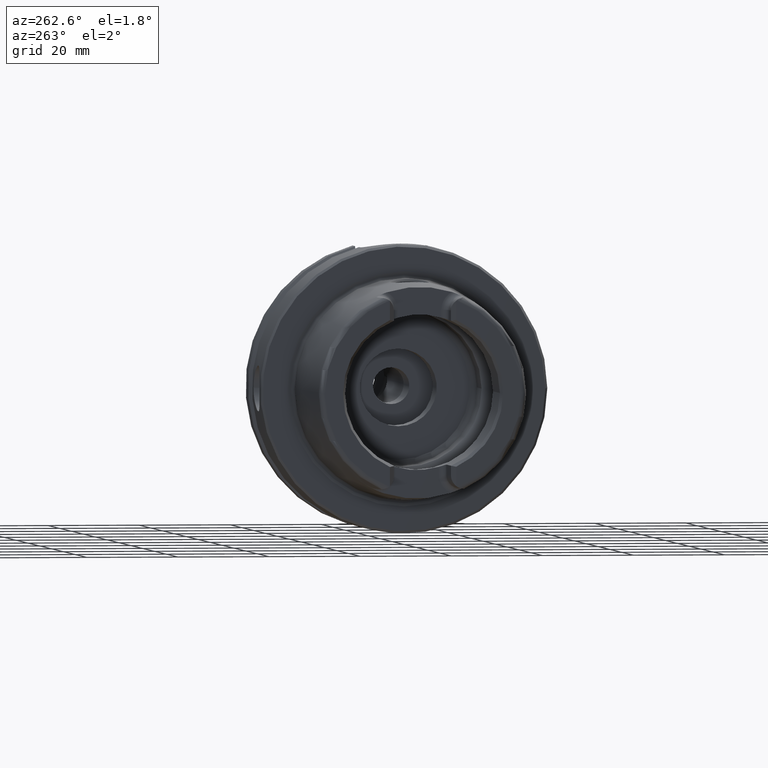
[diagram: clean part render]
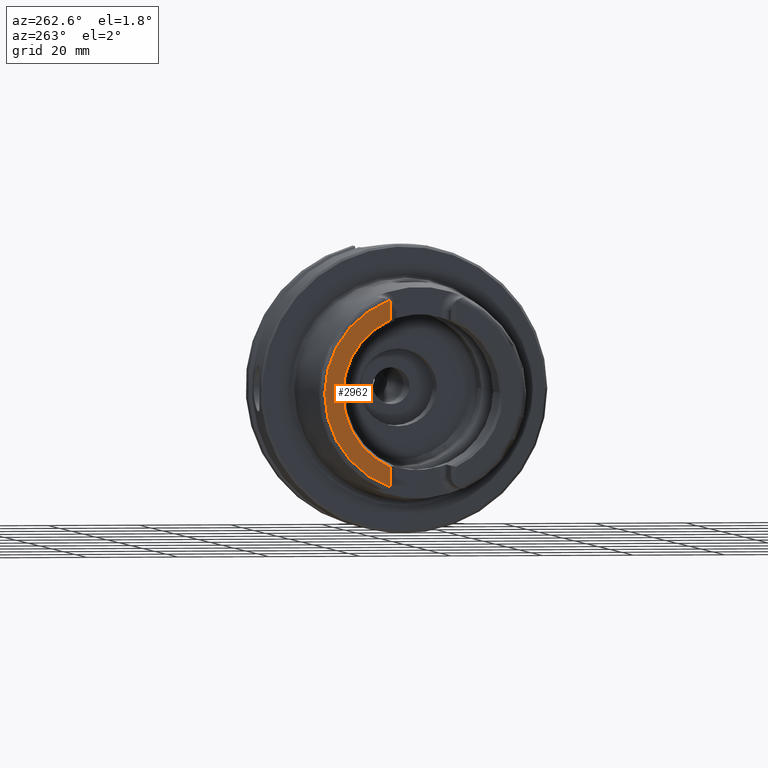
[diagram: same view with one face highlighted and labeled with its STEP entity id]
A machine part, auxiliary view. The second image highlights one B-rep face of the part: STEP entity #2962.
In plain terms, the highlighted planar face has unit normal (-1, 0, 0).
Its self-contained STEP definition (entity closure, byte-faithful):
#195=PLANE('',#3319);
#400=FACE_OUTER_BOUND('',#578,.T.);
#578=EDGE_LOOP('',(#2469,#2470,#2471,#2472,#2473,#2474));
#684=LINE('',#4564,#837);
#694=LINE('',#4657,#847);
#837=VECTOR('',#3637,10.);
#847=VECTOR('',#3675,10.);
#1002=CIRCLE('',#3167,2.88);
#1008=CIRCLE('',#3182,2.88);
#1076=CIRCLE('',#3318,17.5773502691896);
#1077=CIRCLE('',#3320,21.5760400159857);
#1202=VERTEX_POINT('',#4557);
#1205=VERTEX_POINT('',#4562);
#1208=VERTEX_POINT('',#4572);
#1223=VERTEX_POINT('',#4654);
#1224=VERTEX_POINT('',#4656);
#1229=VERTEX_POINT('',#4675);
#1521=EDGE_CURVE('',#1205,#1202,#684,.T.);
#1525=EDGE_CURVE('',#1208,#1202,#1002,.T.);
#1543=EDGE_CURVE('',#1223,#1224,#694,.T.);
#1550=EDGE_CURVE('',#1223,#1229,#1008,.T.);
#1745=EDGE_CURVE('',#1224,#1205,#1076,.T.);
#1746=EDGE_CURVE('',#1208,#1229,#1077,.T.);
#2469=ORIENTED_EDGE('',*,*,#1521,.F.);
#2470=ORIENTED_EDGE('',*,*,#1745,.F.);
#2471=ORIENTED_EDGE('',*,*,#1543,.F.);
#2472=ORIENTED_EDGE('',*,*,#1550,.T.);
#2473=ORIENTED_EDGE('',*,*,#1746,.F.);
#2474=ORIENTED_EDGE('',*,*,#1525,.T.);
#2962=ADVANCED_FACE('',(#400),#195,.T.);
#3167=AXIS2_PLACEMENT_3D('',#4573,#3645,#3646);
#3182=AXIS2_PLACEMENT_3D('',#4688,#3684,#3685);
#3318=AXIS2_PLACEMENT_3D('',#5804,#4019,#4020);
#3319=AXIS2_PLACEMENT_3D('',#5805,#4021,#4022);
#3320=AXIS2_PLACEMENT_3D('',#5806,#4023,#4024);
#3637=DIRECTION('',(0.,0.,-1.));
#3645=DIRECTION('center_axis',(-1.,0.,0.));
#3646=DIRECTION('ref_axis',(0.,-0.453346760926793,0.891334232685576));
#3675=DIRECTION('',(0.,1.58830189502884E-16,-1.));
#3684=DIRECTION('center_axis',(-1.,0.,0.));
#3685=DIRECTION('ref_axis',(0.,1.,0.));
#4019=DIRECTION('center_axis',(-1.,0.,0.));
#4020=DIRECTION('ref_axis',(0.,-1.,0.));
#4021=DIRECTION('center_axis',(-1.,0.,0.));
#4022=DIRECTION('ref_axis',(0.,0.,1.));
#4023=DIRECTION('center_axis',(1.,0.,0.));
#4024=DIRECTION('ref_axis',(0.,0.,-1.));
#4557=CARTESIAN_POINT('',(-32.,7.27,-20.1717424229271));
#4562=CARTESIAN_POINT('',(-32.,7.27,-16.003447831195));
#4564=CARTESIAN_POINT('',(-32.,7.27,-5.5));
#4572=CARTESIAN_POINT('',(-32.,7.39118810947246,-20.2705658801576));
#4573=CARTESIAN_POINT('Origin',(-32.,9.15,-17.99));
#4654=CARTESIAN_POINT('',(-32.,7.27,20.1717424229271));
#4656=CARTESIAN_POINT('',(-32.,7.27,16.003447831195));
#4657=CARTESIAN_POINT('',(-32.,7.27,8.995));
#4675=CARTESIAN_POINT('',(-32.,7.39118810947246,20.2705658801576));
#4688=CARTESIAN_POINT('Origin',(-32.,9.15,17.99));
#5804=CARTESIAN_POINT('Origin',(-32.,0.,0.));
#5805=CARTESIAN_POINT('Origin',(-32.,21.5760400159857,0.));
#5806=CARTESIAN_POINT('Origin',(-32.,0.,0.));